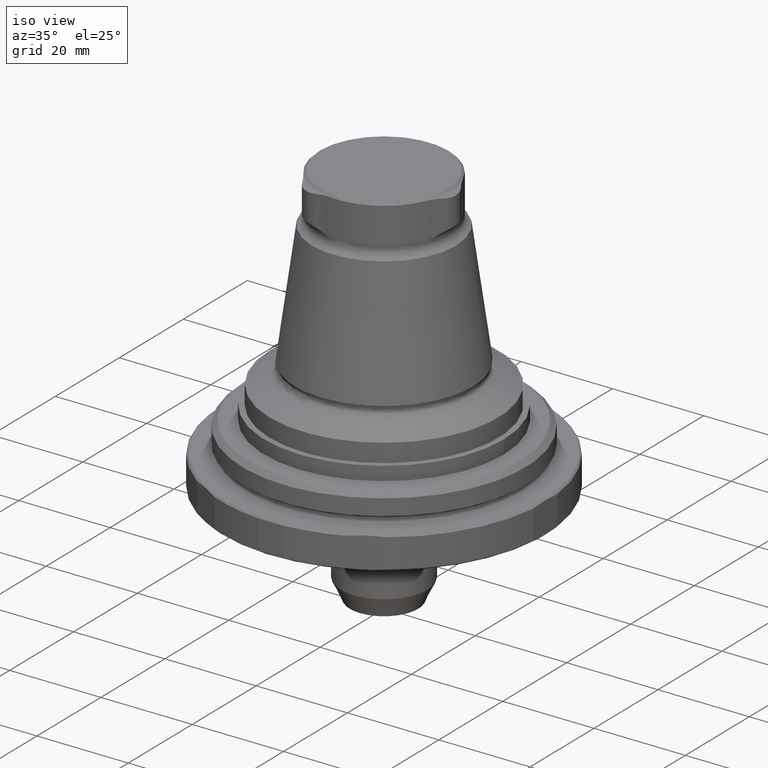
[diagram: clean part render]
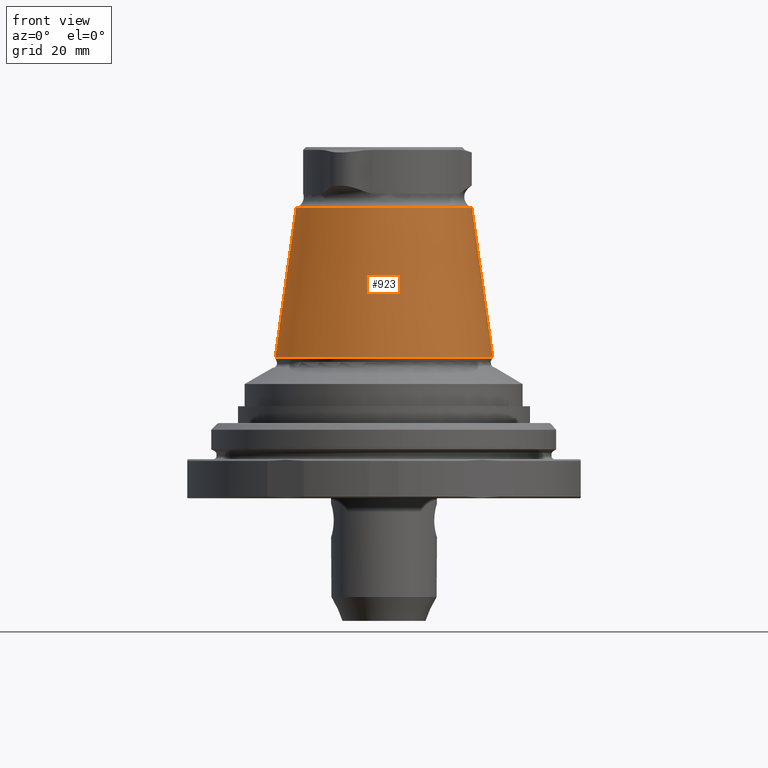
[diagram: tour spotlight — one face highlighted and labeled with its STEP entity id]
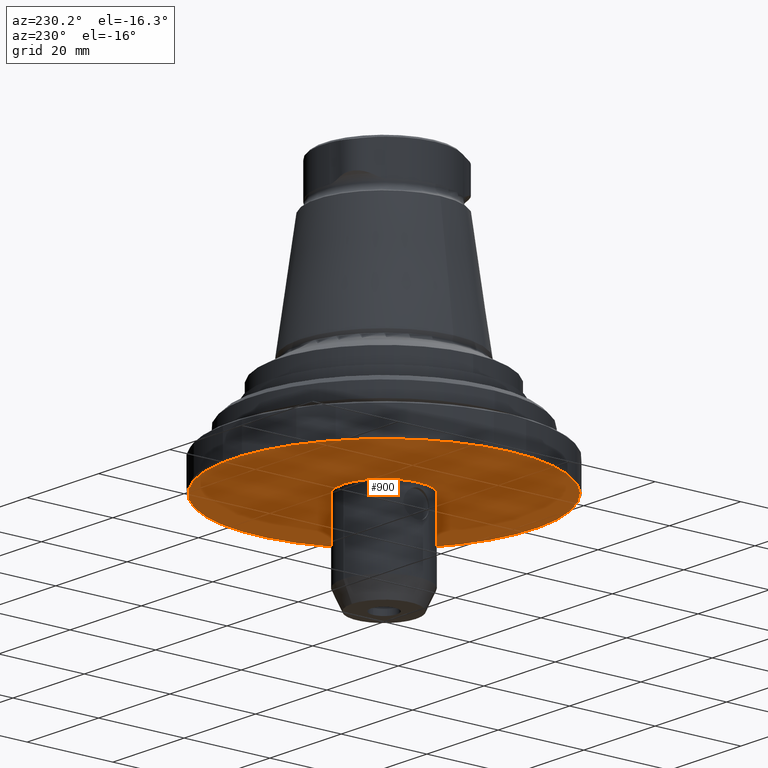
[diagram: tour spotlight — one face highlighted and labeled with its STEP entity id]
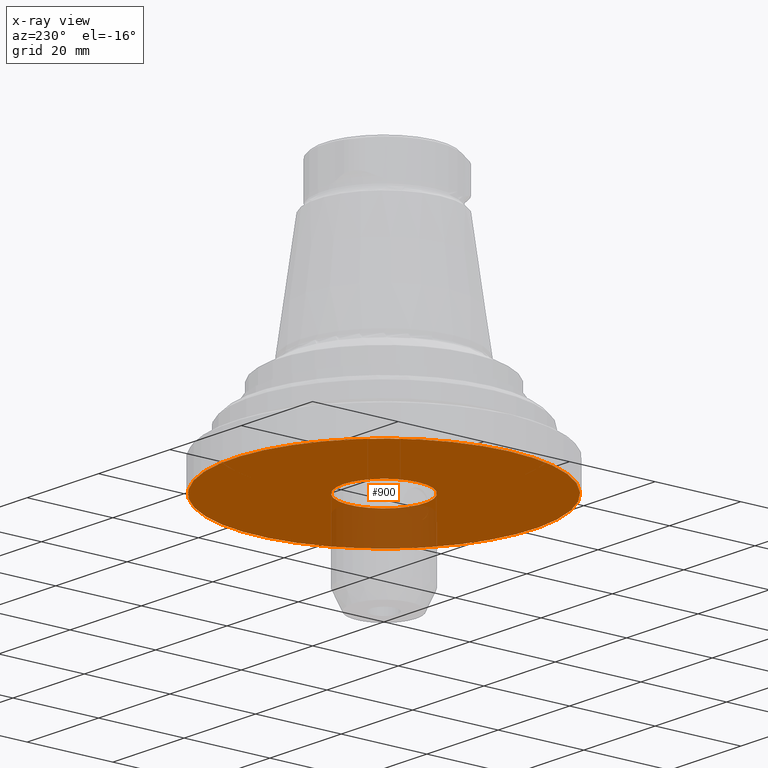
[diagram: x-ray of the same camera — body ghosted, this tour face saturated]
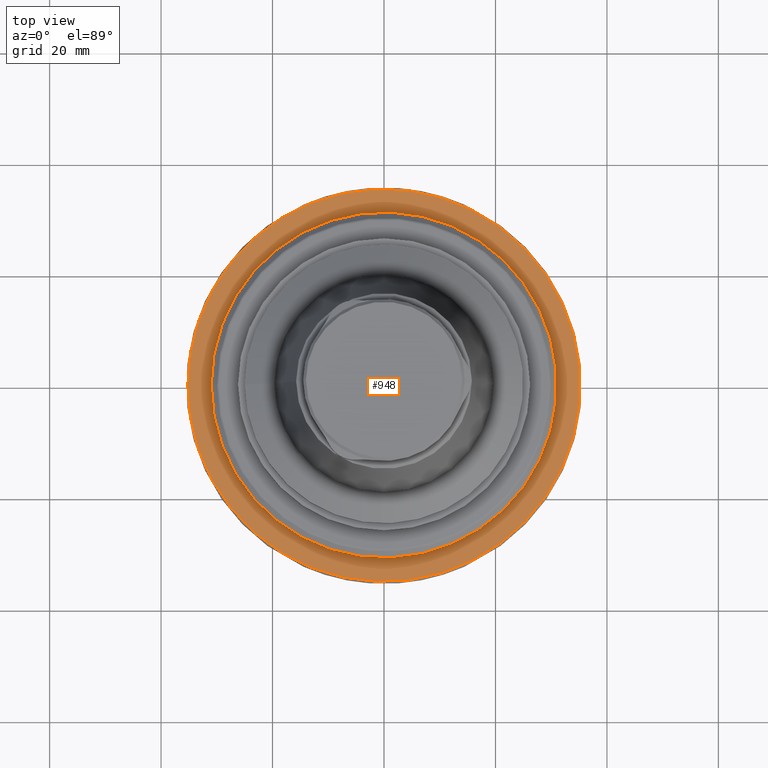
[diagram: tour spotlight — one face highlighted and labeled with its STEP entity id]
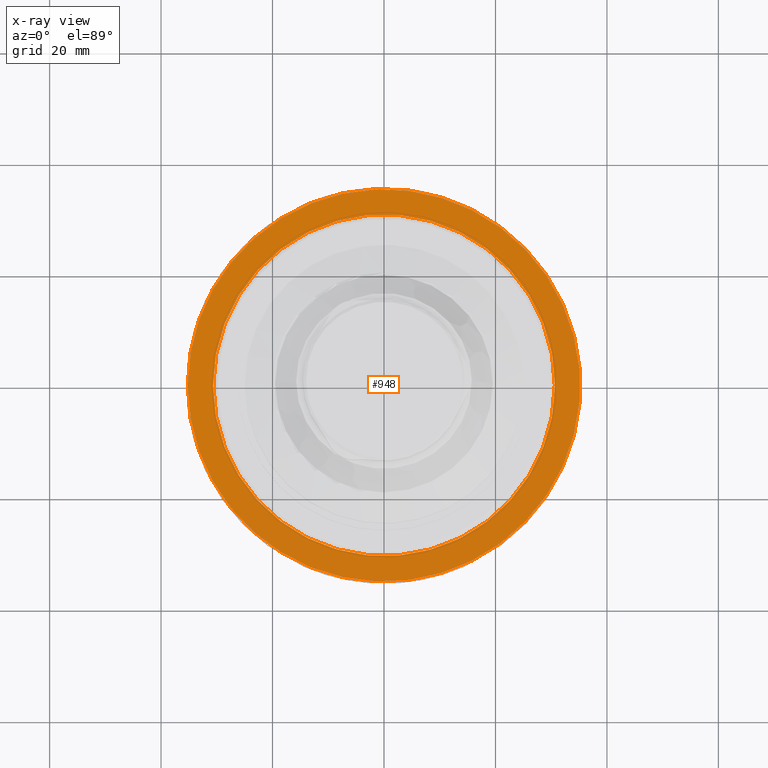
[diagram: x-ray of the same camera — body ghosted, this tour face saturated]
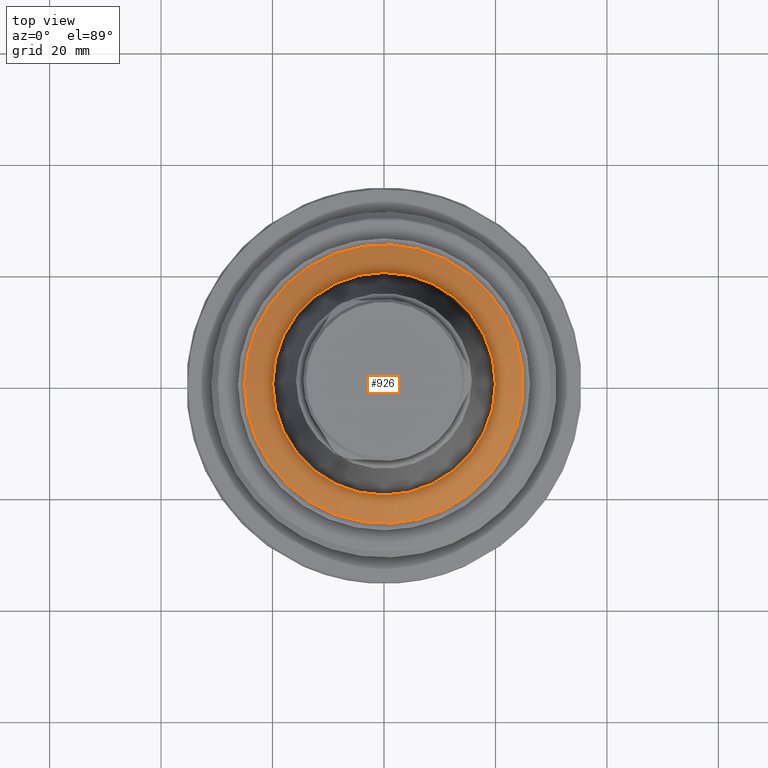
[diagram: tour spotlight — one face highlighted and labeled with its STEP entity id]
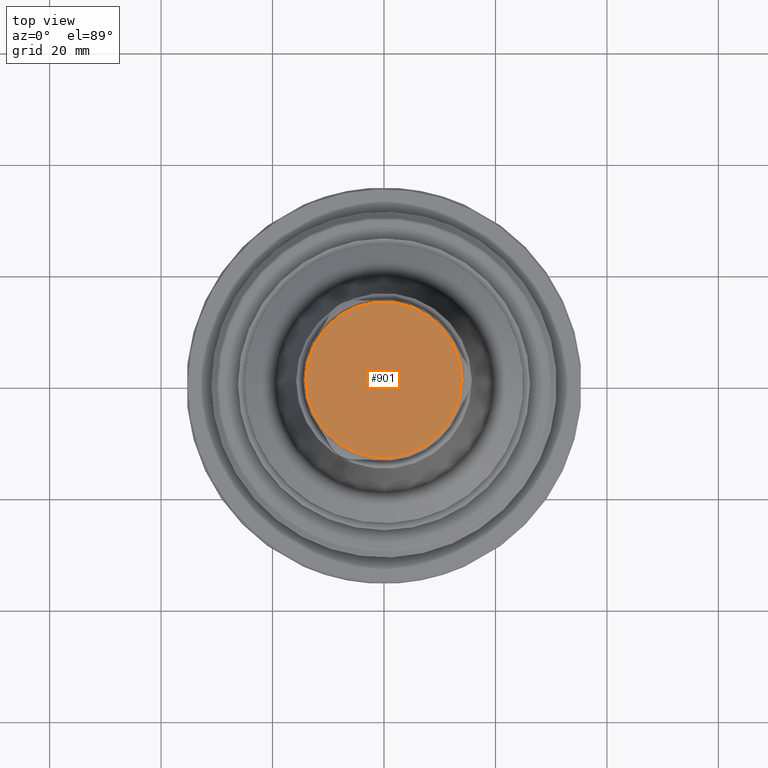
[diagram: tour spotlight — one face highlighted and labeled with its STEP entity id]
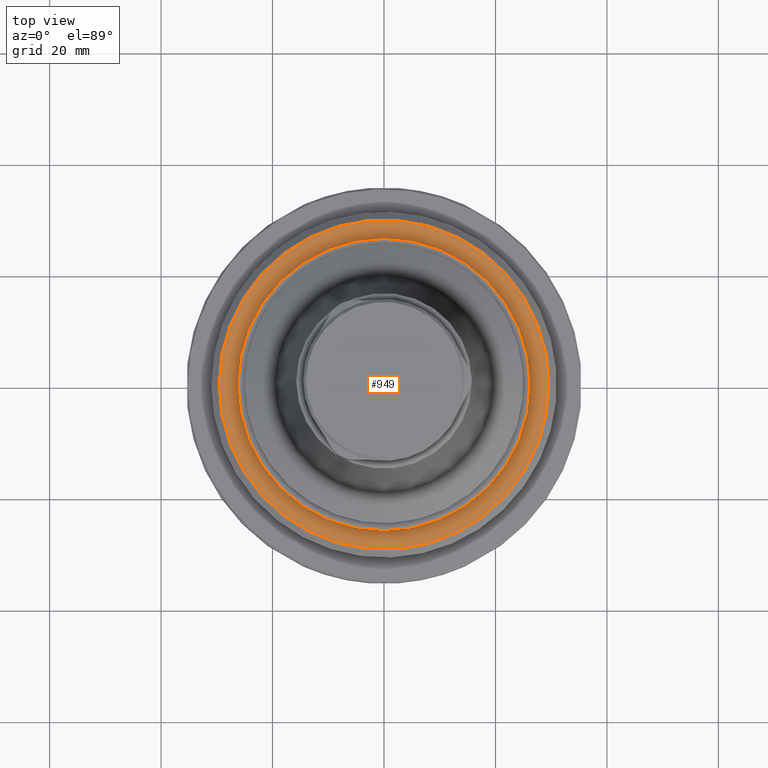
[diagram: tour spotlight — one face highlighted and labeled with its STEP entity id]
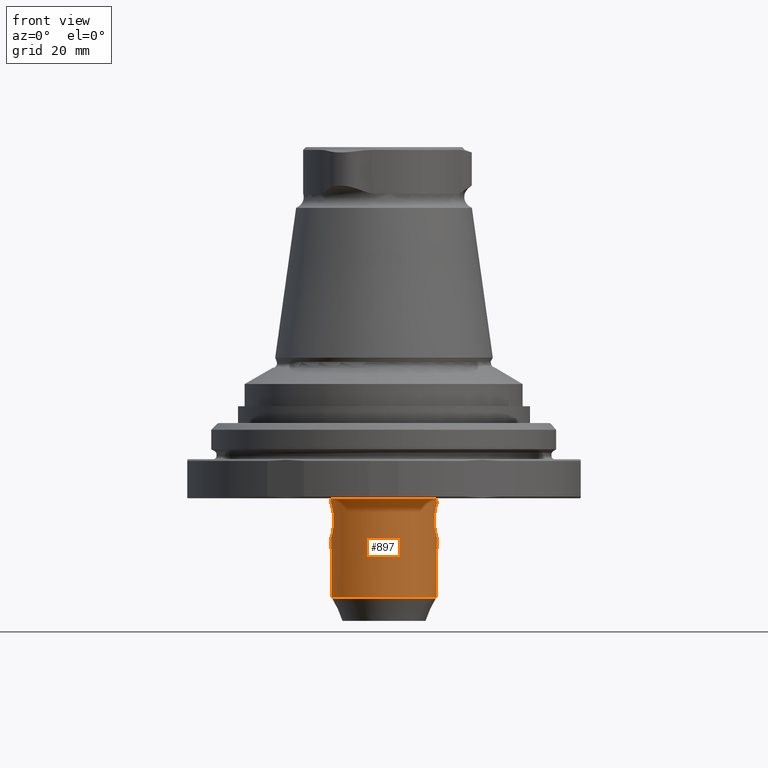
[diagram: tour spotlight — one face highlighted and labeled with its STEP entity id]
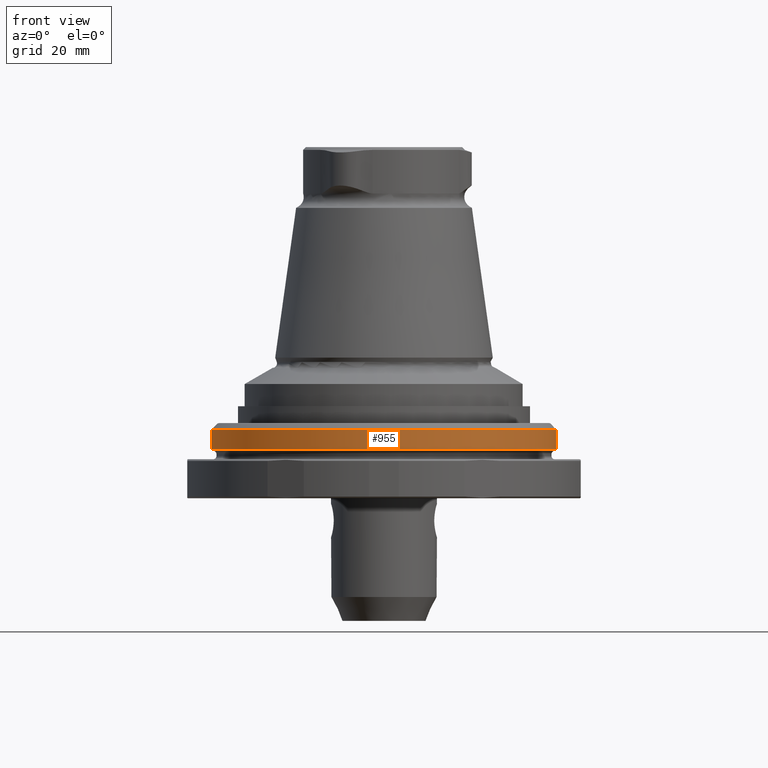
[diagram: tour spotlight — one face highlighted and labeled with its STEP entity id]
A machine part: a face-by-face anatomy tour. The part has 66 B-rep faces; the first image is the clean iso view, then the 8 largest visible faces are spotlighted one at a time (largest first), each with its STEP entity span.

Face 1 — front view, entity #923. In plain terms, the highlighted conical surface has half-angle 7.95 deg.
Definition (entity closure, byte-faithful):
#90=CONICAL_SURFACE('',#1022,19.5234803751964,0.138753675533549);
#133=CIRCLE('',#1021,15.7697129677509);
#134=CIRCLE('',#1023,19.5234803751964);
#280=ORIENTED_EDGE('',*,*,#476,.T.);
#281=ORIENTED_EDGE('',*,*,#477,.F.);
#476=EDGE_CURVE('',#583,#583,#133,.T.);
#477=EDGE_CURVE('',#584,#584,#134,.T.);
#583=VERTEX_POINT('',#1600);
#584=VERTEX_POINT('',#1603);
#712=EDGE_LOOP('',(#280));
#713=EDGE_LOOP('',(#281));
#808=FACE_BOUND('',#712,.T.);
#809=FACE_BOUND('',#713,.T.);
#923=ADVANCED_FACE('',(#808,#809),#90,.T.);
#1021=AXIS2_PLACEMENT_3D('',#1599,#1201,#1202);
#1022=AXIS2_PLACEMENT_3D('',#1601,#1203,#1204);
#1023=AXIS2_PLACEMENT_3D('',#1602,#1205,#1206);
#1201=DIRECTION('',(-4.38328612912168E-16,-8.51929322185263E-24,-1.));
#1202=DIRECTION('',(-1.,9.77164313006873E-16,4.38328610599545E-16));
#1203=DIRECTION('',(-4.38328612912168E-16,-8.51929322185263E-24,-1.));
#1204=DIRECTION('',(-1.,9.77164313006873E-16,4.38328610599545E-16));
#1205=DIRECTION('',(-4.38328612912168E-16,-8.51929322185263E-24,-1.));
#1206=DIRECTION('',(-1.,9.77164313006873E-16,4.38328610599545E-16));
#1599=CARTESIAN_POINT('',(-6.84295923615457E-14,-9.81645347925611E-14,44.108));
#1600=CARTESIAN_POINT('',(-15.7697129677509,-8.27549340541132E-14,44.108));
#1601=CARTESIAN_POINT('',(-8.02117003448131E-14,-9.81645350215565E-14,17.2283767306235));
#1602=CARTESIAN_POINT('',(-8.02117003448131E-14,-9.81645350215565E-14,17.2283767306235));
#1603=CARTESIAN_POINT('',(-19.5234803751965,-7.90868867332246E-14,17.2283767306235));

Face 2 — auxiliary view, entity #900. An x-ray twin of the same camera follows (body ghosted, this face saturated) — the face is partly hidden behind the body. In plain terms, the highlighted planar face has unit normal (-0, -0, -1).
Definition (entity closure, byte-faithful):
#98=PLANE('',#983);
#114=CIRCLE('',#977,9.5);
#118=CIRCLE('',#984,35.2);
#177=ORIENTED_EDGE('',*,*,#420,.F.);
#178=ORIENTED_EDGE('',*,*,#425,.T.);
#420=EDGE_CURVE('',#545,#545,#114,.T.);
#425=EDGE_CURVE('',#550,#550,#118,.T.);
#545=VERTEX_POINT('',#1384);
#550=VERTEX_POINT('',#1407);
#685=EDGE_LOOP('',(#177));
#686=EDGE_LOOP('',(#178));
#781=FACE_BOUND('',#685,.T.);
#782=FACE_BOUND('',#686,.T.);
#900=ADVANCED_FACE('',(#781,#782),#98,.T.);
#977=AXIS2_PLACEMENT_3D('',#1383,#1101,#1102);
#983=AXIS2_PLACEMENT_3D('',#1405,#1113,#1114);
#984=AXIS2_PLACEMENT_3D('',#1406,#1115,#1116);
#1101=DIRECTION('',(-4.38328612912168E-16,-8.51929322185263E-24,-1.));
#1102=DIRECTION('',(-1.,9.15933995315755E-16,4.38328610599545E-16));
#1113=DIRECTION('',(-4.38328612912168E-16,-8.51929322185263E-24,-1.));
#1114=DIRECTION('',(-1.,9.77164313006873E-16,4.38328610599545E-16));
#1115=DIRECTION('',(-5.47430718319515E-16,-4.76420379815137E-18,-1.));
#1116=DIRECTION('',(-1.,9.15933995315755E-16,5.47430716006892E-16));
#1383=CARTESIAN_POINT('',(-9.8143331184139E-14,-9.81645352364844E-14,-7.99999999999998));
#1384=CARTESIAN_POINT('',(-9.5000000000001,-8.94631622809847E-14,-7.99999999999998));
#1405=CARTESIAN_POINT('',(-26.5000000000001,-7.22696809418023E-14,-7.99999999999997));
#1406=CARTESIAN_POINT('',(-9.27428981461721E-14,-9.8228851872749E-14,-7.99999999999999));
#1407=CARTESIAN_POINT('',(-35.2000000000001,-6.59879752376344E-14,-7.99999999999997));

Face 3 — top view, entity #948. An x-ray twin of the same camera follows (body ghosted, this face saturated) — the face is partly hidden behind the body. In plain terms, the highlighted planar face has unit normal (-0, -0, -1).
Definition (entity closure, byte-faithful):
#109=PLANE('',#1071);
#143=CIRCLE('',#1040,35.2);
#158=CIRCLE('',#1072,30.65);
#392=ORIENTED_EDGE('',*,*,#533,.T.);
#393=ORIENTED_EDGE('',*,*,#488,.F.);
#488=EDGE_CURVE('',#595,#595,#143,.T.);
#533=EDGE_CURVE('',#624,#624,#158,.T.);
#595=VERTEX_POINT('',#1633);
#624=VERTEX_POINT('',#1772);
#746=EDGE_LOOP('',(#392));
#747=EDGE_LOOP('',(#393));
#842=FACE_BOUND('',#746,.T.);
#843=FACE_BOUND('',#747,.T.);
#948=ADVANCED_FACE('',(#842,#843),#109,.F.);
#1040=AXIS2_PLACEMENT_3D('',#1632,#1241,#1242);
#1071=AXIS2_PLACEMENT_3D('',#1770,#1317,#1318);
#1072=AXIS2_PLACEMENT_3D('',#1771,#1319,#1320);
#1241=DIRECTION('',(-5.47430718319515E-16,-4.76420379815137E-18,-1.));
#1242=DIRECTION('',(-1.,9.15933995315755E-16,5.47430716006892E-16));
#1317=DIRECTION('',(-5.47430718319515E-16,-4.76420379815137E-18,-1.));
#1318=DIRECTION('',(-1.,9.15933995315755E-16,5.47430716006892E-16));
#1319=DIRECTION('',(-5.47430718319515E-16,-4.76420379815137E-18,-1.));
#1320=DIRECTION('',(-1.,9.15933995315755E-16,5.47430716006892E-16));
#1632=CARTESIAN_POINT('',(-8.89108831179355E-14,-9.81955024461619E-14,-0.999999999999989));
#1633=CARTESIAN_POINT('',(-35.2000000000001,-6.59546258110474E-14,-0.99999999999997));
#1770=CARTESIAN_POINT('',(-30.6500000000001,-7.01221254897341E-14,-0.999999999999972));
#1771=CARTESIAN_POINT('',(-8.89108831179355E-14,-9.81955024461619E-14,-0.999999999999989));
#1772=CARTESIAN_POINT('',(-30.6500000000001,-7.01221254897341E-14,-0.999999999999972));

Face 4 — top view, entity #926. In plain terms, the highlighted conical surface has half-angle 60 deg.
Definition (entity closure, byte-faithful):
#92=CONICAL_SURFACE('',#1028,25.,1.0471975511966);
#136=CIRCLE('',#1027,19.9770526580503);
#137=CIRCLE('',#1029,25.);
#286=ORIENTED_EDGE('',*,*,#479,.T.);
#287=ORIENTED_EDGE('',*,*,#480,.F.);
#479=EDGE_CURVE('',#586,#586,#136,.T.);
#480=EDGE_CURVE('',#587,#587,#137,.T.);
#586=VERTEX_POINT('',#1609);
#587=VERTEX_POINT('',#1612);
#718=EDGE_LOOP('',(#286));
#719=EDGE_LOOP('',(#287));
#814=FACE_BOUND('',#718,.T.);
#815=FACE_BOUND('',#719,.T.);
#926=ADVANCED_FACE('',(#814,#815),#92,.T.);
#1027=AXIS2_PLACEMENT_3D('',#1608,#1213,#1214);
#1028=AXIS2_PLACEMENT_3D('',#1610,#1215,#1216);
#1029=AXIS2_PLACEMENT_3D('',#1611,#1217,#1218);
#1213=DIRECTION('',(-4.38328612912168E-16,-8.51929322185263E-24,-1.));
#1214=DIRECTION('',(-1.,9.77164313006873E-16,4.38328610599545E-16));
#1215=DIRECTION('',(-4.38328612912168E-16,-8.51929322185263E-24,-1.));
#1216=DIRECTION('',(-1.,9.77164313006873E-16,4.38328610599545E-16));
#1217=DIRECTION('',(-4.38328612912168E-16,-8.51929322185263E-24,-1.));
#1218=DIRECTION('',(-1.,9.77164313006873E-16,4.38328610599545E-16));
#1608=CARTESIAN_POINT('',(-8.10136170325717E-14,-9.81645350371424E-14,15.398889300107));
#1609=CARTESIAN_POINT('',(-19.9770526580504,-7.86436721006366E-14,15.398889300107));
#1610=CARTESIAN_POINT('',(-8.2284770010017E-14,-9.81645350618484E-14,12.498889300107));
#1611=CARTESIAN_POINT('',(-8.2284770010017E-14,-9.81645350618484E-14,12.498889300107));
#1612=CARTESIAN_POINT('',(-25.0000000000001,-7.37354272366765E-14,12.498889300107));

Face 5 — top view, entity #901. In plain terms, the highlighted planar face has unit normal (0, 0, 1).
Definition (entity closure, byte-faithful):
#99=PLANE('',#985);
#119=CIRCLE('',#986,14.);
#179=ORIENTED_EDGE('',*,*,#426,.F.);
#426=EDGE_CURVE('',#551,#551,#119,.T.);
#551=VERTEX_POINT('',#1410);
#687=EDGE_LOOP('',(#179));
#783=FACE_BOUND('',#687,.T.);
#901=ADVANCED_FACE('',(#783),#99,.T.);
#985=AXIS2_PLACEMENT_3D('',#1408,#1117,#1118);
#986=AXIS2_PLACEMENT_3D('',#1409,#1119,#1120);
#1117=DIRECTION('',(4.38328612912168E-16,8.51929322185263E-24,1.));
#1118=DIRECTION('',(1.,-9.77164313006873E-16,-4.38328610599545E-16));
#1119=DIRECTION('',(-4.38328612912168E-16,-8.51929322185263E-24,-1.));
#1120=DIRECTION('',(-1.,9.77164313006873E-16,4.38328610599545E-16));
#1408=CARTESIAN_POINT('',(-14.0000000000001,-8.44842343176727E-14,55.));
#1409=CARTESIAN_POINT('',(-6.36553171097064E-14,-9.81645346997689E-14,55.));
#1410=CARTESIAN_POINT('',(-14.0000000000001,-8.44842343176727E-14,55.));

Face 6 — top view, entity #949. In plain terms, the highlighted planar face has unit normal (-0, -0, -1).
Definition (entity closure, byte-faithful):
#110=PLANE('',#1073);
#140=CIRCLE('',#1035,26.2);
#159=CIRCLE('',#1074,29.5524710292422);
#394=ORIENTED_EDGE('',*,*,#483,.F.);
#395=ORIENTED_EDGE('',*,*,#534,.F.);
#483=EDGE_CURVE('',#590,#590,#140,.T.);
#534=EDGE_CURVE('',#625,#625,#159,.T.);
#590=VERTEX_POINT('',#1621);
#625=VERTEX_POINT('',#1775);
#748=EDGE_LOOP('',(#394));
#749=EDGE_LOOP('',(#395));
#844=FACE_BOUND('',#748,.T.);
#845=FACE_BOUND('',#749,.T.);
#949=ADVANCED_FACE('',(#844,#845),#110,.F.);
#1035=AXIS2_PLACEMENT_3D('',#1620,#1229,#1230);
#1073=AXIS2_PLACEMENT_3D('',#1773,#1321,#1322);
#1074=AXIS2_PLACEMENT_3D('',#1774,#1323,#1324);
#1229=DIRECTION('',(5.5264198129461E-16,5.34134317477693E-17,1.));
#1230=DIRECTION('',(1.,-9.77164313006873E-16,-5.58279830278911E-16));
#1321=DIRECTION('',(-5.47430718319515E-16,-4.76420379815137E-18,-1.));
#1322=DIRECTION('',(-1.,9.15933995315755E-16,5.47430716006892E-16));
#1323=DIRECTION('',(-5.47430718319515E-16,-4.76420379815137E-18,-1.));
#1324=DIRECTION('',(-1.,9.15933995315755E-16,5.47430716006892E-16));
#1620=CARTESIAN_POINT('',(-8.02869289039323E-14,-9.81483671983164E-14,5.50000000000001));
#1621=CARTESIAN_POINT('',(26.1999999999999,-1.23750072199096E-13,5.5));
#1773=CARTESIAN_POINT('',(-8.53525834488587E-14,-9.8164535121474E-14,5.50000000000001));
#1774=CARTESIAN_POINT('',(-8.53525834488587E-14,-9.8164535121474E-14,5.50000000000002));
#1775=CARTESIAN_POINT('',(-29.5524710292423,-7.1096422260207E-14,5.50000000000003));

Face 7 — front view, entity #897. In plain terms, the highlighted cylindrical surface (bore or boss wall) has radius 9.5 mm, axis along (-0, -0, -1).
Definition (entity closure, byte-faithful):
#114=CIRCLE('',#977,9.5);
#115=CIRCLE('',#978,9.5);
#169=ORIENTED_EDGE('',*,*,#419,.F.);
#170=ORIENTED_EDGE('',*,*,#420,.T.);
#171=ORIENTED_EDGE('',*,*,#421,.F.);
#172=ORIENTED_EDGE('',*,*,#422,.T.);
#419=EDGE_CURVE('',#544,#544,#635,.T.);
#420=EDGE_CURVE('',#545,#545,#114,.T.);
#421=EDGE_CURVE('',#546,#546,#115,.T.);
#422=EDGE_CURVE('',#547,#547,#636,.T.);
#544=VERTEX_POINT('',#1382);
#545=VERTEX_POINT('',#1384);
#546=VERTEX_POINT('',#1386);
#547=VERTEX_POINT('',#1398);
#635=B_SPLINE_CURVE_WITH_KNOTS('',3,(#1371,#1372,#1373,#1374,#1375,#1376,
#1377,#1378,#1379,#1380,#1381),.UNSPECIFIED.,.T.,.F.,(1,1,1,1,1,1,1,1,1,
1,1,1,1,1,1),(-0.00707919616560362,-0.00471946411040241,-0.00235973205520121,
1.32973942100354E-19,0.00235973205520121,0.00471946411040241,0.00707919616560362,
0.00943892822080483,0.011798660276006,0.0141583923312072,0.0165181243864084,
0.0188778564416097,0.0212375884968109,0.0235973205520121,0.0259570526072133),
 .UNSPECIFIED.);
#636=B_SPLINE_CURVE_WITH_KNOTS('',3,(#1387,#1388,#1389,#1390,#1391,#1392,
#1393,#1394,#1395,#1396,#1397),.UNSPECIFIED.,.T.,.F.,(1,1,1,1,1,1,1,1,1,
1,1,1,1,1,1),(-0.00708147661122657,-0.00472098440748438,-0.00236049220374219,
5.91991783201359E-19,0.00236049220374219,0.00472098440748438,0.00708147661122656,
0.00944196881496875,0.0118024610187109,0.0141629532224531,0.0165234454261953,
0.0188839376299375,0.0212444298336797,0.0236049220374219,0.0259654142411641),
 .UNSPECIFIED.);
#677=EDGE_LOOP('',(#169));
#678=EDGE_LOOP('',(#170));
#679=EDGE_LOOP('',(#171));
#680=EDGE_LOOP('',(#172));
#773=FACE_BOUND('',#677,.T.);
#774=FACE_BOUND('',#678,.T.);
#775=FACE_BOUND('',#679,.T.);
#776=FACE_BOUND('',#680,.T.);
#869=CYLINDRICAL_SURFACE('',#976,9.5);
#897=ADVANCED_FACE('',(#773,#774,#775,#776),#869,.T.);
#976=AXIS2_PLACEMENT_3D('',#1370,#1099,#1100);
#977=AXIS2_PLACEMENT_3D('',#1383,#1101,#1102);
#978=AXIS2_PLACEMENT_3D('',#1385,#1103,#1104);
#1099=DIRECTION('',(-5.47430718319515E-16,-8.51929311524195E-24,-1.));
#1100=DIRECTION('',(-6.38378239159465E-16,1.,-3.83055215771257E-23));
#1101=DIRECTION('',(-4.38328612912168E-16,-8.51929322185263E-24,-1.));
#1102=DIRECTION('',(-1.,9.15933995315755E-16,4.38328610599545E-16));
#1103=DIRECTION('',(-5.47430718319515E-16,-8.51929311524195E-24,-1.));
#1104=DIRECTION('',(-6.38378239159465E-16,1.,-3.83055215771257E-23));
#1370=CARTESIAN_POINT('',(-1.18946306511521E-13,-9.8164535560227E-14,-46.001110699893));
#1371=CARTESIAN_POINT('',(-9.26297600886439,2.3522219608486,-14.3493734749528));
#1372=CARTESIAN_POINT('',(-9.61849532674935,-0.00010378426876657,-15.3254947910001));
#1373=CARTESIAN_POINT('',(-9.26304268413882,-2.35180682377353,-14.3486473610466));
#1374=CARTESIAN_POINT('',(-8.88921873610417,-3.32448737192308,-12.0039402430786));
#1375=CARTESIAN_POINT('',(-9.26335290330979,-2.35023948234359,-9.64789706551574));
#1376=CARTESIAN_POINT('',(-9.61827518186006,-0.00191799801838038,-8.67599069598735));
#1377=CARTESIAN_POINT('',(-9.26354587803591,2.35042826201544,-9.64814170604782));
#1378=CARTESIAN_POINT('',(-8.88918684051167,3.32433735640866,-11.9997318915666));
#1379=CARTESIAN_POINT('',(-9.26297600886439,2.3522219608486,-14.3493734749528));
#1380=CARTESIAN_POINT('',(-9.61849532674935,-0.00010378426876657,-15.3254947910001));
#1381=CARTESIAN_POINT('',(-9.26304268413882,-2.35180682377353,-14.3486473610466));
#1382=CARTESIAN_POINT('',(-9.5000000000001,1.36957339103332E-16,-15.));
#1383=CARTESIAN_POINT('',(-9.8143331184139E-14,-9.81645352364844E-14,-7.99999999999998));
#1384=CARTESIAN_POINT('',(-9.5000000000001,-8.94631622809847E-14,-7.99999999999998));
#1385=CARTESIAN_POINT('',(-1.07838869059297E-13,-9.81645353873695E-14,-25.7109861589809));
#1386=CARTESIAN_POINT('',(-1.13903462331312E-13,9.4999999999999,-25.7109861589809));
#1387=CARTESIAN_POINT('',(9.26395452166768,2.34840377224059,-14.3420179981646));
#1388=CARTESIAN_POINT('',(9.61802858804712,1.37515607336112E-5,-15.3319866899424));
#1389=CARTESIAN_POINT('',(9.26393112614319,-2.34845877848352,-14.3410070394444));
#1390=CARTESIAN_POINT('',(8.88931967735662,-3.3240772202637,-11.999508537588));
#1391=CARTESIAN_POINT('',(9.26211764553514,-2.35505702215025,-9.6385992857656));
#1392=CARTESIAN_POINT('',(9.6188938309812,-0.00147253600351596,-8.67790409096297));
#1393=CARTESIAN_POINT('',(9.26230672267953,2.35502297587949,-9.63881351773692));
#1394=CARTESIAN_POINT('',(8.88926177653665,3.32411385360493,-11.9956216849587));
#1395=CARTESIAN_POINT('',(9.26395452166768,2.34840377224059,-14.3420179981646));
#1396=CARTESIAN_POINT('',(9.61802858804712,1.37515607336112E-5,-15.3319866899424));
#1397=CARTESIAN_POINT('',(9.26393112614319,-2.34845877848352,-14.3410070394444));
#1398=CARTESIAN_POINT('',(9.4999999999999,5.22025315840862E-16,-15.0018286328964));

Face 8 — front view, entity #955. In plain terms, the highlighted cylindrical surface (bore or boss wall) has radius 31 mm, axis along (-0, -0, -1).
Definition (entity closure, byte-faithful):
#164=CIRCLE('',#1084,31.);
#165=CIRCLE('',#1086,31.);
#406=ORIENTED_EDGE('',*,*,#540,.F.);
#407=ORIENTED_EDGE('',*,*,#539,.T.);
#539=EDGE_CURVE('',#630,#630,#164,.T.);
#540=EDGE_CURVE('',#631,#631,#165,.T.);
#630=VERTEX_POINT('',#1790);
#631=VERTEX_POINT('',#1793);
#760=EDGE_LOOP('',(#406));
#761=EDGE_LOOP('',(#407));
#856=FACE_BOUND('',#760,.T.);
#857=FACE_BOUND('',#761,.T.);
#893=CYLINDRICAL_SURFACE('',#1085,31.);
#955=ADVANCED_FACE('',(#856,#857),#893,.T.);
#1084=AXIS2_PLACEMENT_3D('',#1789,#1343,#1344);
#1085=AXIS2_PLACEMENT_3D('',#1791,#1345,#1346);
#1086=AXIS2_PLACEMENT_3D('',#1792,#1347,#1348);
#1343=DIRECTION('',(-5.47430718319515E-16,-4.76420379815137E-18,-1.));
#1344=DIRECTION('',(-1.,9.15933995315755E-16,5.47430716006892E-16));
#1345=DIRECTION('',(-5.47430718319515E-16,-4.76420379815137E-18,-1.));
#1346=DIRECTION('',(-1.,9.15933995315755E-16,5.47430716006892E-16));
#1347=DIRECTION('',(-5.47430718319515E-16,-4.76420379815137E-18,-1.));
#1348=DIRECTION('',(-1.,9.15933995315755E-16,5.47430716006892E-16));
#1789=CARTESIAN_POINT('',(-8.60095003108421E-14,-9.81702521660317E-14,4.30000000000001));
#1790=CARTESIAN_POINT('',(-31.0000000000001,-6.97762983112434E-14,4.30000000000003));
#1791=CARTESIAN_POINT('',(-8.89108831179355E-14,-9.81955024461619E-14,-0.999999999999989));
#1792=CARTESIAN_POINT('',(-8.79255078249604E-14,-9.81869268793253E-14,0.800000000000011));
#1793=CARTESIAN_POINT('',(-31.0000000000001,-6.97929730245369E-14,0.800000000000028));